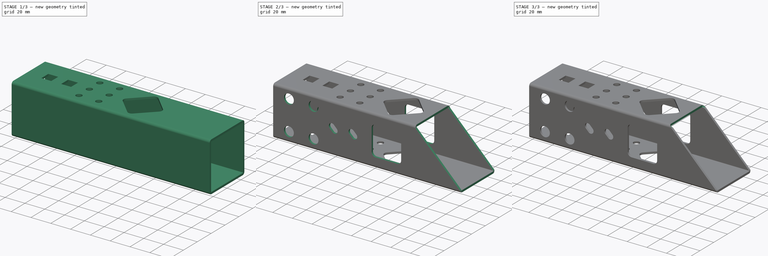
[diagram: build sequence overview — one tinted view per stage of 3, left to right]
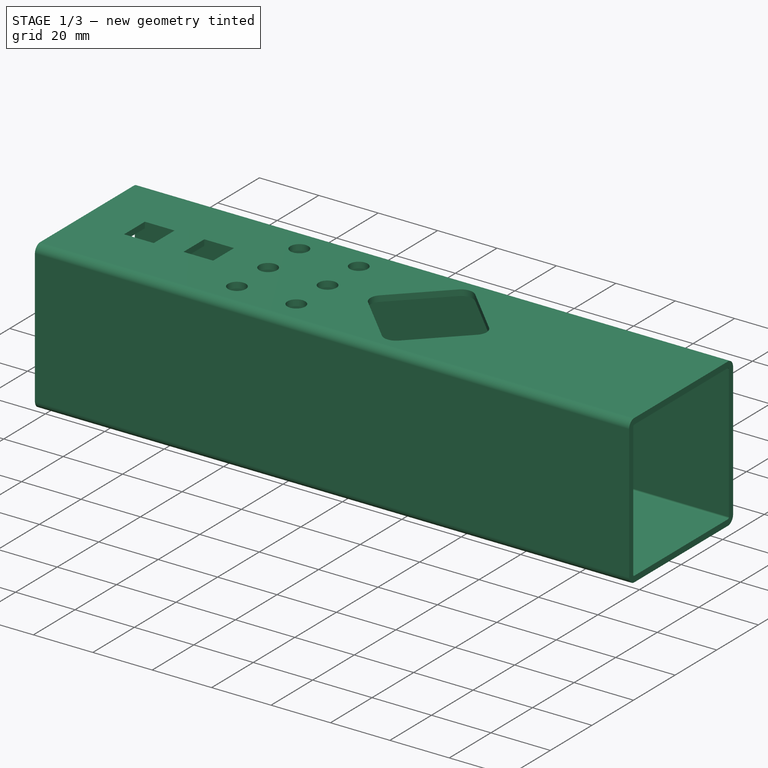
[diagram: stage 1 of 3 — iso view after this stage's code; geometry added in this stage tinted green]
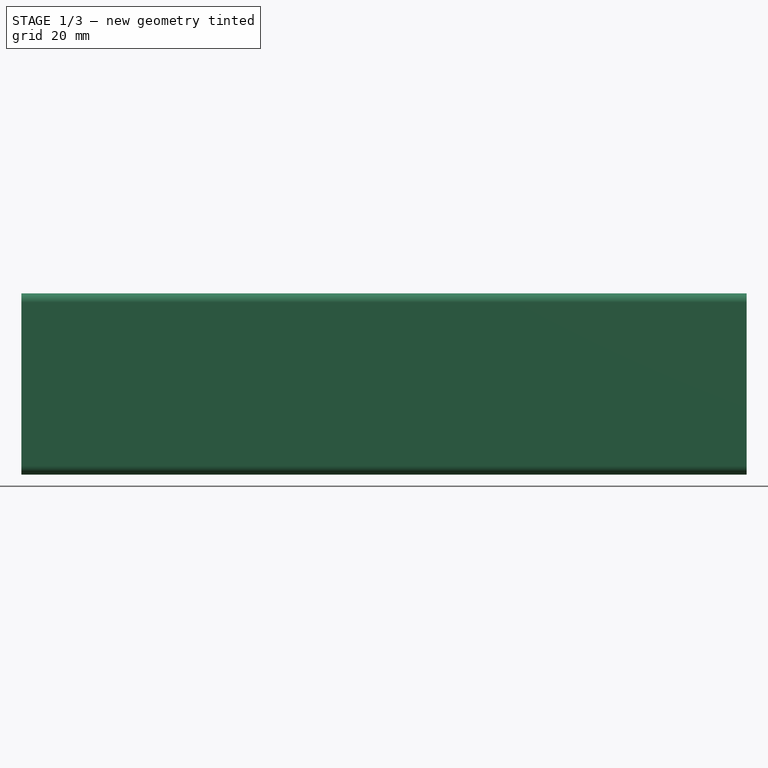
[diagram: stage 1 of 3 — front view after this stage's code; geometry added in this stage tinted green]
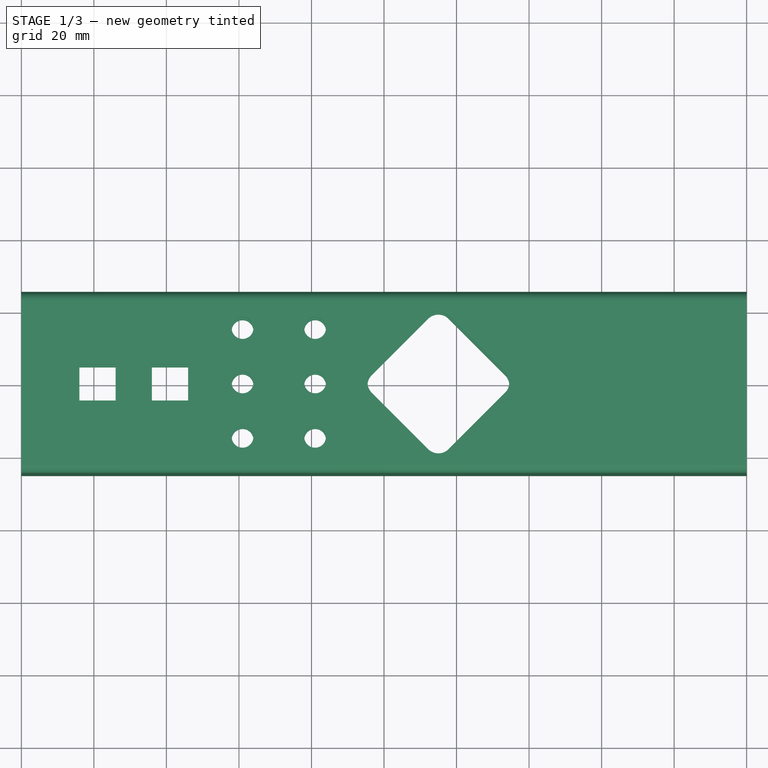
[diagram: stage 1 of 3 — top view after this stage's code; geometry added in this stage tinted green]
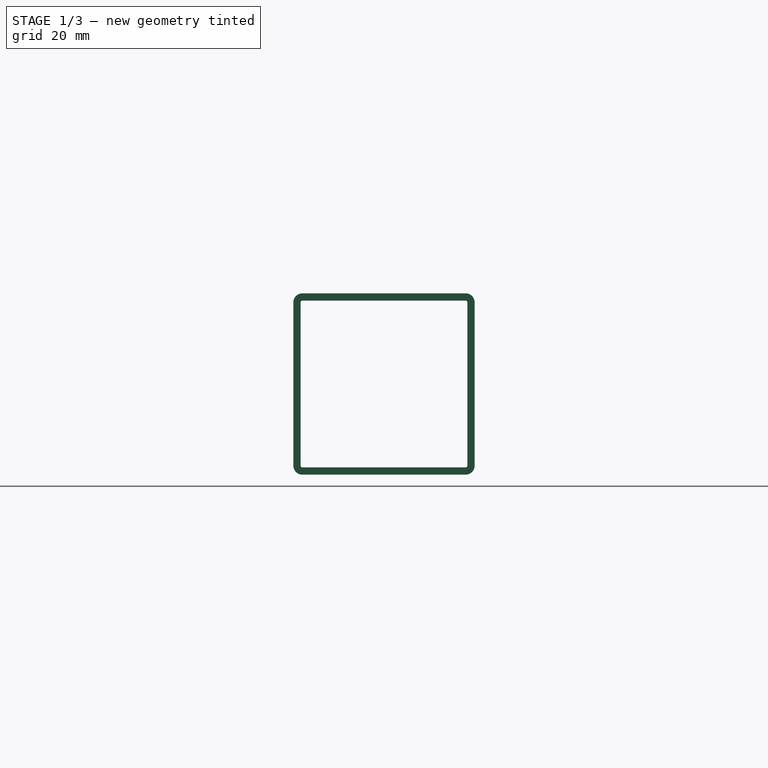
[diagram: stage 1 of 3 — right view after this stage's code; geometry added in this stage tinted green]
FCSTD DOCUMENT  (FreeCAD 0.20R26075 +2 (Git))
Label: tube_normalcut
License: All rights reserved
LicenseURL: http://en.wikipedia.org/wiki/All_rights_reserved
objects: Sketcher::SketchObject×4, PartDesign::Pocket×3, Part::FeaturePython×2, Part::Offset×2, PartDesign::Pad×1, PartDesign::Body×1, Part::MultiCommon×1, Part::Feature×1
note: 19 computed .brp shape members not serialized (recipe doc carries the construction recipe); baked Part::Feature solids carry a one-line shape summary decoded from their .brp

FEATURE [Sketcher::SketchObject] Sketch
  FullyConstrained = false
  Placement = pos=(0,0,25) rot=(0,0,1;0rad)
  sketch-geometry (24):
    g0: LineSegment StartX=26 StartY=-5 StartZ=0 EndX=26 EndY=5 EndZ=0
    g1: LineSegment StartX=26 StartY=5 StartZ=0 EndX=16 EndY=5 EndZ=0
    g2: LineSegment StartX=16 StartY=5 StartZ=0 EndX=16 EndY=-5 EndZ=0
    g3: LineSegment StartX=16 StartY=-5 StartZ=0 EndX=26 EndY=-5 EndZ=0
    g4: LineSegment StartX=46 StartY=-5 StartZ=0 EndX=46 EndY=5 EndZ=0
    g5: LineSegment StartX=46 StartY=5 StartZ=0 EndX=36 EndY=5 EndZ=0
    g6: LineSegment StartX=36 StartY=5 StartZ=0 EndX=36 EndY=-5 EndZ=0
    g7: LineSegment StartX=36 StartY=-5 StartZ=0 EndX=46 EndY=-5 EndZ=0
    g8: Circle CenterX=60.9981 CenterY=-15 CenterZ=0 NormalX=0 NormalY=0 NormalZ=-1 AngleXU=0 Radius=3
    g9: Circle CenterX=60.9981 CenterY=-2e-16 CenterZ=0 NormalX=0 NormalY=0 NormalZ=-1 AngleXU=0 Radius=3
    g10: Circle CenterX=60.9981 CenterY=15 CenterZ=0 NormalX=0 NormalY=0 NormalZ=-1 AngleXU=0 Radius=3
    g11: Circle CenterX=81.0019 CenterY=15 CenterZ=0 NormalX=0 NormalY=0 NormalZ=1 AngleXU=0 Radius=3
    g12: Circle CenterX=81.0019 CenterY=-4e-16 CenterZ=0 NormalX=0 NormalY=0 NormalZ=1 AngleXU=0 Radius=3
    g13: Circle CenterX=81.0019 CenterY=-15 CenterZ=0 NormalX=0 NormalY=0 NormalZ=1 AngleXU=0 Radius=3
    g14: ArcOfCircle CenterX=115 CenterY=15.5563 CenterZ=0 NormalX=0 NormalY=0 NormalZ=1 AngleXU=0 Radius=4 StartAngle=0.785398 EndAngle=2.35619
    g15: LineSegment StartX=117.828 StartY=18.3848 StartZ=0 EndX=133.385 EndY=2.82843 EndZ=0
    g16: ArcOfCircle CenterX=130.556 CenterY=0 CenterZ=0 NormalX=0 NormalY=0 NormalZ=1 AngleXU=0 Radius=4 StartAngle=5.49779 EndAngle=7.06858
    g17: LineSegment StartX=133.385 StartY=-2.82843 StartZ=0 EndX=117.828 EndY=-18.3848 EndZ=0
    g18: ArcOfCircle CenterX=115 CenterY=-15.5563 CenterZ=0 NormalX=0 NormalY=0 NormalZ=1 AngleXU=0 Radius=4 StartAngle=3.92699 EndAngle=5.49779
    g19: LineSegment StartX=112.172 StartY=-18.3848 StartZ=0 EndX=96.6152 EndY=-2.82843 EndZ=0
    g20: ArcOfCircle CenterX=99.4437 CenterY=0 CenterZ=0 NormalX=0 NormalY=0 NormalZ=1 AngleXU=0 Radius=4 StartAngle=2.35619 EndAngle=3.92699
    g21: LineSegment StartX=96.6152 StartY=2.82843 StartZ=0 EndX=112.172 EndY=18.3848 EndZ=0
    g22: GeomPoint X=115 Y=21.2132 Z=0
    g23: GeomPoint X=115 Y=-21.2132 Z=0
  constraints (24):
    c: Tangent(g14,g15) = 1.5708
    c: Tangent(g15,g16) = 1.5708
    c: Tangent(g16,g17) = 1.5708
    c: Tangent(g17,g18) = 1.5708
    c: Tangent(g18,g19) = 1.5708
    c: Tangent(g19,g20) = 1.5708
    c: Tangent(g20,g21) = 1.5708
    c: Tangent(g21,g14) = 1.5708
    c: Parallel(g15,g19)
    c: Parallel(g17,g21)
    c: Equal(g14,g16)
    c: Equal(g16,g18)
    c: Equal(g18,g20)
    c: PointOnObject(g22,g15)
    c: PointOnObject(g22,g21)
    c: PointOnObject(g23,g17)
    c: PointOnObject(g23,g19)
    c: Perpendicular(g17,g15)
    c: PointOnObject(g16,g-1)
    c: PointOnObject(g20,g-1)
    c: Vertical(g18,g14)
    c: Diameter(g20) = 8
    c: Distance(g21) = 22
    c: DistanceX(g-1,g18) = 115
FEATURE [Sketcher::SketchObject] Sketch001
  FullyConstrained = true
  MapMode = 5
  Placement = pos=(0,0,0) rot=(0.57735,0.57735,0.57735;2.0944rad)
  Support = -> [YZ_Plane]
  sketch-geometry (20):
    g0: ArcOfCircle CenterX=-22.5 CenterY=22.5 CenterZ=0 NormalX=0 NormalY=0 NormalZ=1 AngleXU=0 Radius=2.5 StartAngle=1.5708 EndAngle=3.14159
    g1: LineSegment StartX=-22.5 StartY=25 StartZ=0 EndX=22.5 EndY=25 EndZ=0
    g2: ArcOfCircle CenterX=22.5 CenterY=22.5 CenterZ=0 NormalX=0 NormalY=0 NormalZ=1 AngleXU=0 Radius=2.5 StartAngle=-6.91e-13 EndAngle=1.5708
    g3: LineSegment StartX=25 StartY=22.5 StartZ=0 EndX=25 EndY=-22.5 EndZ=0
    g4: ArcOfCircle CenterX=22.5 CenterY=-22.5 CenterZ=0 NormalX=0 NormalY=0 NormalZ=1 AngleXU=0 Radius=2.5 StartAngle=4.71239 EndAngle=6.28319
    g5: LineSegment StartX=22.5 StartY=-25 StartZ=0 EndX=-22.5 EndY=-25 EndZ=0
    g6: ArcOfCircle CenterX=-22.5 CenterY=-22.5 CenterZ=0 NormalX=0 NormalY=0 NormalZ=1 AngleXU=0 Radius=2.5 StartAngle=3.14159 EndAngle=4.71239
    g7: LineSegment StartX=-25 StartY=-22.5 StartZ=0 EndX=-25 EndY=22.5 EndZ=0
    g8: GeomPoint X=-25 Y=25 Z=0
    g9: GeomPoint X=25 Y=-25 Z=0
    g10: ArcOfCircle CenterX=-22.5 CenterY=22.5 CenterZ=0 NormalX=0 NormalY=0 NormalZ=1 AngleXU=0 Radius=0.5 StartAngle=1.5708 EndAngle=3.14159
    g11: LineSegment StartX=-22.5 StartY=23 StartZ=0 EndX=22.5 EndY=23 EndZ=0
    g12: ArcOfCircle CenterX=22.5 CenterY=22.5 CenterZ=0 NormalX=0 NormalY=0 NormalZ=1 AngleXU=0 Radius=0.5 StartAngle=3.19008e-11 EndAngle=1.5708
    g13: LineSegment StartX=23 StartY=22.5 StartZ=0 EndX=23 EndY=-22.5 EndZ=0
    g14: ArcOfCircle CenterX=22.5 CenterY=-22.5 CenterZ=0 NormalX=0 NormalY=0 NormalZ=1 AngleXU=0 Radius=0.5 StartAngle=4.71239 EndAngle=6.28319
    g15: LineSegment StartX=22.5 StartY=-23 StartZ=0 EndX=-22.5 EndY=-23 EndZ=0
    g16: ArcOfCircle CenterX=-22.5 CenterY=-22.5 CenterZ=0 NormalX=0 NormalY=0 NormalZ=1 AngleXU=0 Radius=0.5 StartAngle=3.14159 EndAngle=4.71239
    g17: LineSegment StartX=-23 StartY=-22.5 StartZ=0 EndX=-23 EndY=22.5 EndZ=0
    g18: GeomPoint X=-23 Y=23 Z=0
    g19: GeomPoint X=23 Y=-23 Z=0
  constraints (45):
    c: Tangent(g0,g1) = 1.5708
    c: Tangent(g1,g2) = 1.5708
    c: Tangent(g2,g3) = 1.5708
    c: Tangent(g3,g4) = 1.5708
    c: Tangent(g4,g5) = 1.5708
    c: Tangent(g5,g6) = 1.5708
    c: Tangent(g6,g7) = 1.5708
    c: Tangent(g7,g0) = 1.5708
    c: Horizontal(g1)
    c: Horizontal(g5)
    c: Vertical(g3)
    c: Vertical(g7)
    c: Equal(g0,g2)
    c: Equal(g2,g4)
    c: Equal(g4,g6)
    c: PointOnObject(g8,g1)
    c: PointOnObject(g8,g7)
    c: PointOnObject(g9,g3)
    c: PointOnObject(g9,g5)
    c: DistanceX(g0,g2) = 50
    c: Equal(g1,g3)
    c: Symmetric(g0,g4,g-1)
    c: Tangent(g10,g11) = 1.5708
    c: Tangent(g11,g12) = 1.5708
    c: Tangent(g12,g13) = 1.5708
    c: Tangent(g13,g14) = 1.5708
    c: Tangent(g14,g15) = 1.5708
    c: Tangent(g15,g16) = 1.5708
    c: Tangent(g16,g17) = 1.5708
    c: Tangent(g17,g10) = 1.5708
    c: Horizontal(g11)
    c: Horizontal(g15)
    c: Vertical(g13)
    c: Vertical(g17)
    c: Equal(g14,g16)
    c: PointOnObject(g18,g11)
    c: PointOnObject(g18,g17)
    c: PointOnObject(g19,g13)
    c: PointOnObject(g19,g15)
    c: Symmetric(g10,g14,g-1)
    c: DistanceY(g11,g1) = 2
    c: Equal(g11,g13)
    c: Equal(g12,g10)
    c: Radius(g2) = 2.5
    c: Coincident(g12,g2)
FEATURE [PartDesign::Pad] Pad
  Direction = (1,-2e-16,3e-16)
  Length = 200
  Length2 = 100
  Placement = pos=(0,0,0) rot=(0.57735,0.57735,0.57735;2.0944rad)
  Profile = -> Sketch001
  Type = 0
FEATURE [Sketcher::SketchObject] Sketch002
  AttachmentOffset = pos=(0,0,0) rot=(0,0,1;1.5708rad)
  FullyConstrained = false
  MapMode = 5
  Placement = pos=(-1.1e-14,-25,1.7e-14) rot=(1,0,0;1.5708rad)
  sketch-geometry (28):
    g0: Circle CenterX=41 CenterY=-15 CenterZ=0 NormalX=0 NormalY=0 NormalZ=1 AngleXU=0 Radius=4.99925
    g1: Circle CenterX=16 CenterY=-15 CenterZ=0 NormalX=0 NormalY=0 NormalZ=1 AngleXU=0 Radius=5
    g2: Circle CenterX=16 CenterY=15 CenterZ=0 NormalX=0 NormalY=0 NormalZ=1 AngleXU=0 Radius=5
    g3: Circle CenterX=41 CenterY=15 CenterZ=0 NormalX=0 NormalY=0 NormalZ=1 AngleXU=0 Radius=4.99925
    g4: LineSegment StartX=58.88 StartY=-2.12 StartZ=0 EndX=60.29 EndY=-3.54 EndZ=0
    g5: ArcOfCircle CenterX=62.415 CenterY=-1.415 CenterZ=0 NormalX=0 NormalY=0 NormalZ=1 AngleXU=0 Radius=3.0052 StartAngle=3.92699 EndAngle=7.06858
    g6: LineSegment StartX=64.54 StartY=0.71 StartZ=0 EndX=63.12 EndY=2.12 EndZ=0
    g7: LineSegment StartX=63.12 StartY=2.12 StartZ=0 EndX=61.71 EndY=3.54 EndZ=0
    g8: ArcOfCircle CenterX=59.585 CenterY=1.415 CenterZ=0 NormalX=0 NormalY=0 NormalZ=1 AngleXU=0 Radius=3.0052 StartAngle=0.785398 EndAngle=3.92699
    g9: LineSegment StartX=57.46 StartY=-0.71 StartZ=0 EndX=58.88 EndY=-2.12 EndZ=0
    g10: LineSegment StartX=78.88 StartY=-2.12 StartZ=0 EndX=80.29 EndY=-3.54 EndZ=0
    g11: ArcOfCircle CenterX=82.415 CenterY=-1.415 CenterZ=0 NormalX=0 NormalY=0 NormalZ=1 AngleXU=0 Radius=3.0052 StartAngle=3.92699 EndAngle=7.06858
    g12: LineSegment StartX=84.54 StartY=0.71 StartZ=0 EndX=83.12 EndY=2.12 EndZ=0
    g13: LineSegment StartX=83.12 StartY=2.12 StartZ=0 EndX=81.71 EndY=3.54 EndZ=0
    g14: ArcOfCircle CenterX=79.585 CenterY=1.415 CenterZ=0 NormalX=0 NormalY=0 NormalZ=1 AngleXU=0 Radius=3.0052 StartAngle=0.785398 EndAngle=3.92699
    g15: LineSegment StartX=77.46 StartY=-0.71 StartZ=0 EndX=78.88 EndY=-2.12 EndZ=0
    g16: ArcOfCircle CenterX=104 CenterY=11 CenterZ=0 NormalX=0 NormalY=0 NormalZ=1 AngleXU=0 Radius=4 StartAngle=1.5708 EndAngle=3.14159
    g17: LineSegment StartX=104 StartY=15 StartZ=0 EndX=126 EndY=15 EndZ=0
    g18: ArcOfCircle CenterX=126 CenterY=11 CenterZ=0 NormalX=0 NormalY=0 NormalZ=1 AngleXU=0 Radius=4 StartAngle=0 EndAngle=1.5708
    g19: LineSegment StartX=130 StartY=11 StartZ=0 EndX=130 EndY=-11 EndZ=0
    g20: ArcOfCircle CenterX=126 CenterY=-11 CenterZ=0 NormalX=0 NormalY=0 NormalZ=1 AngleXU=0 Radius=4 StartAngle=4.71239 EndAngle=6.28319
    g21: LineSegment StartX=126 StartY=-15 StartZ=0 EndX=104 EndY=-15 EndZ=0
    g22: ArcOfCircle CenterX=104 CenterY=-11 CenterZ=0 NormalX=0 NormalY=0 NormalZ=1 AngleXU=0 Radius=4 StartAngle=3.14159 EndAngle=4.71239
    g23: LineSegment StartX=100 StartY=-11 StartZ=0 EndX=100 EndY=11 EndZ=0
    g24: GeomPoint X=100 Y=15 Z=0
    g25: GeomPoint X=130 Y=-15 Z=0
    g26: LineSegment StartX=104 StartY=11 StartZ=0 EndX=115 EndY=0 EndZ=0
    g27: LineSegment StartX=115 StartY=0 StartZ=0 EndX=126 EndY=-11 EndZ=0
  constraints (39):
    c: Coincident(g8,g9)
    c: Coincident(g4,g9)
    c: Coincident(g4,g5)
    c: Coincident(g7,g8)
    c: Coincident(g6,g7)
    c: Coincident(g5,g6)
    c: Coincident(g14,g15)
    c: Coincident(g10,g15)
    c: Coincident(g10,g11)
    c: Coincident(g13,g14)
    c: Coincident(g12,g13)
    c: Coincident(g11,g12)
    c: Tangent(g16,g17) = 1.5708
    c: Tangent(g17,g18) = 1.5708
    c: Tangent(g18,g19) = 1.5708
    c: Tangent(g19,g20) = 1.5708
    c: Tangent(g20,g21) = 1.5708
    c: Tangent(g21,g22) = 1.5708
    c: Tangent(g22,g23) = 1.5708
    c: Tangent(g23,g16) = 1.5708
    c: Horizontal(g17)
    c: Horizontal(g21)
    c: Vertical(g19)
    c: Vertical(g23)
    c: Equal(g16,g18)
    c: Equal(g18,g20)
    c: PointOnObject(g24,g17)
    c: PointOnObject(g24,g23)
    c: PointOnObject(g25,g19)
    c: PointOnObject(g25,g21)
    c: DistanceX(g21,g21) = 22
    c: Equal(g19,g21)
    c: Diameter(g18) = 8
    c: Symmetric(g22,g16,g-1)
    c: Tangent(g26,g27) = -1.5708
    c: Coincident(g26,g16)
    c: Coincident(g27,g20)
    c: PointOnObject(g26,g-1)
    c: DistanceX(g-1,g26) = 115
FEATURE [PartDesign::Pocket] Pocket
  BaseFeature = -> Pad
  Length = 5
  Length2 = 100
  Placement = pos=(0,0,0) rot=(0.57735,0.57735,0.57735;2.0944rad)
  Profile = -> Sketch
  Type = 1
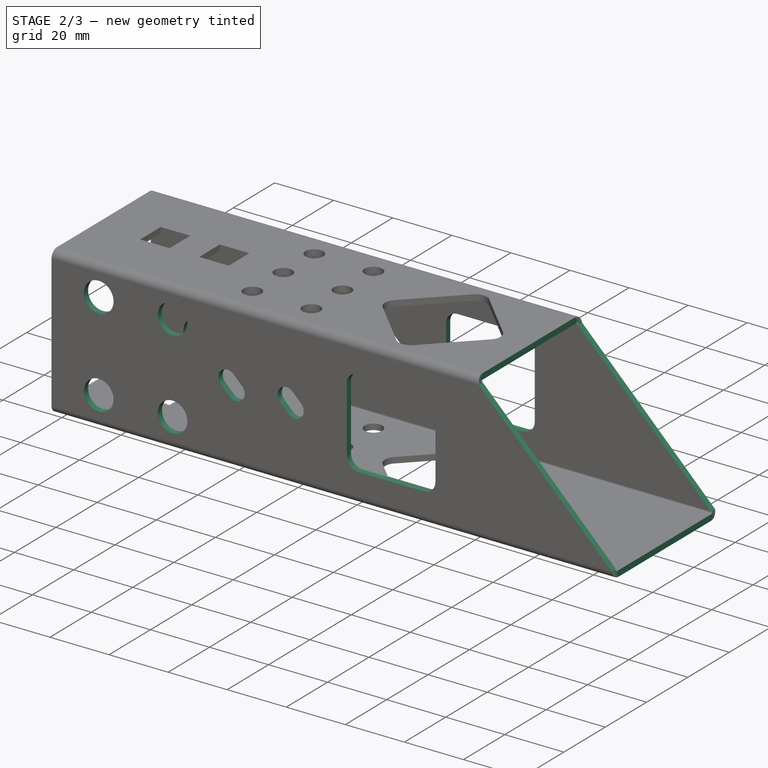
[diagram: stage 2 of 3 — iso view after this stage's code; geometry added in this stage tinted green]
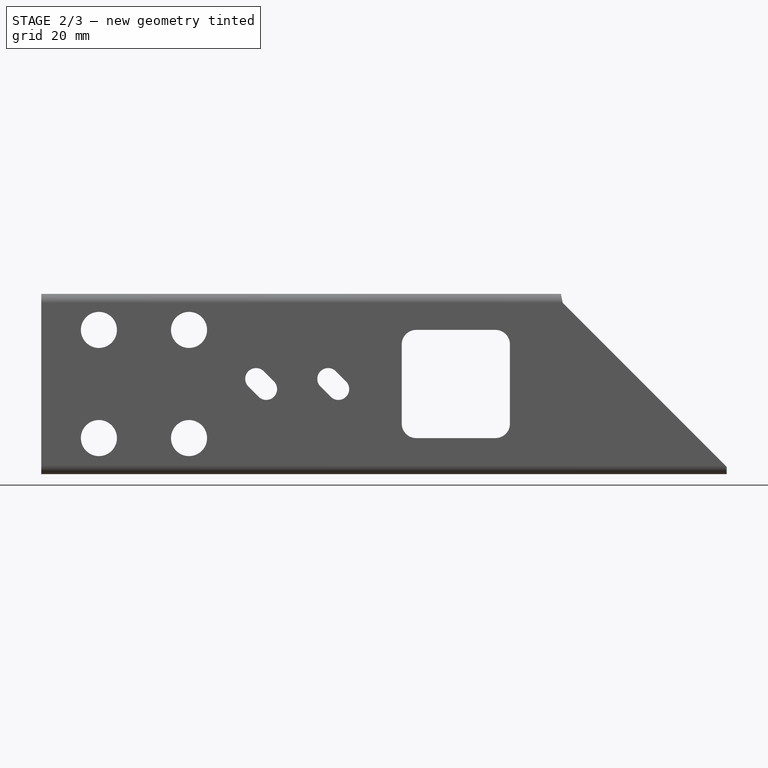
[diagram: stage 2 of 3 — front view after this stage's code; geometry added in this stage tinted green]
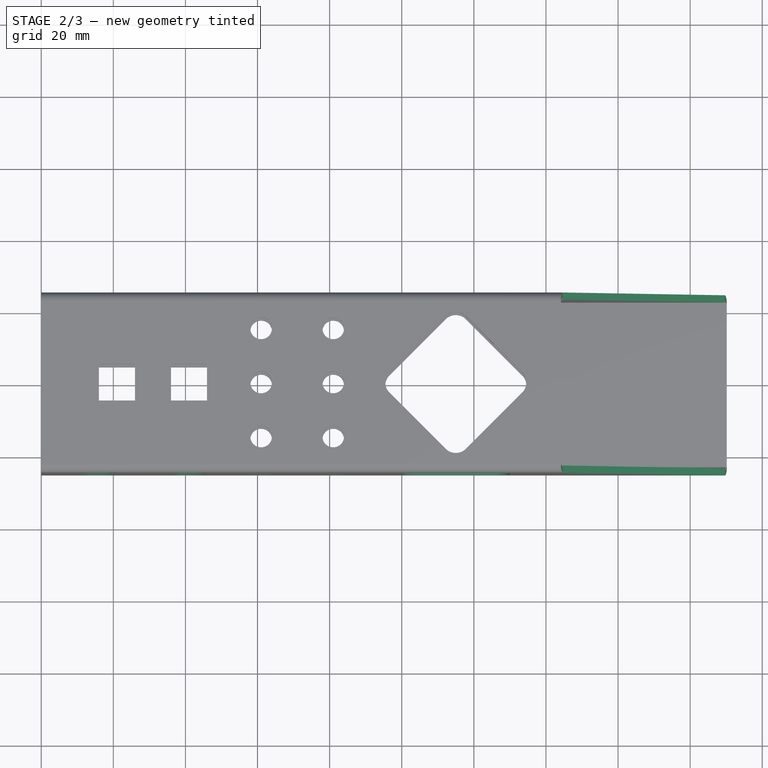
[diagram: stage 2 of 3 — top view after this stage's code; geometry added in this stage tinted green]
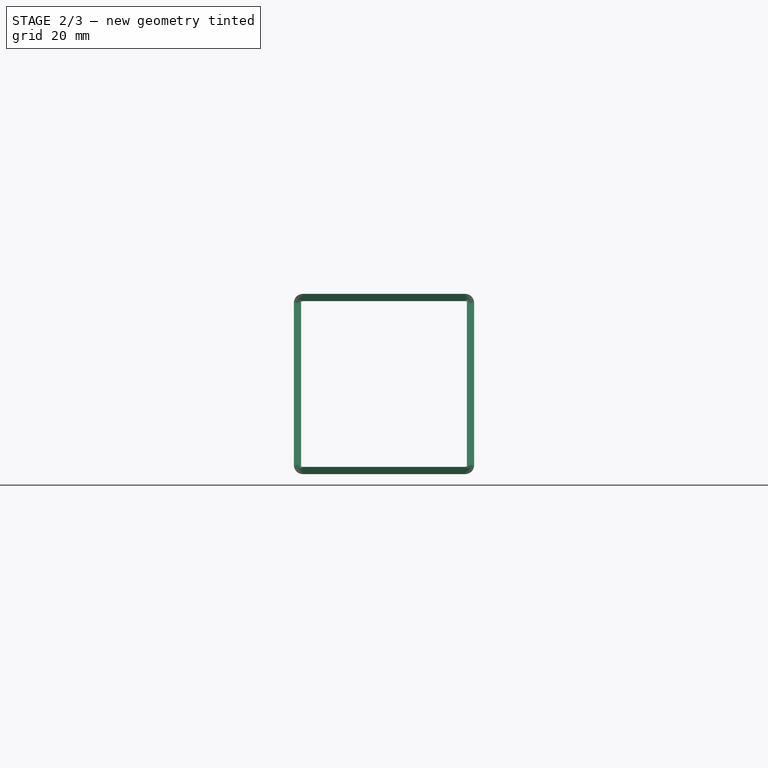
[diagram: stage 2 of 3 — right view after this stage's code; geometry added in this stage tinted green]
FEATURE [PartDesign::Pocket] Pocket001
  BaseFeature = -> Pocket
  Length = 5
  Length2 = 100
  Placement = pos=(0,0,0) rot=(0.57735,0.57735,0.57735;2.0944rad)
  Profile = -> Sketch002
  Type = 1
FEATURE [Sketcher::SketchObject] Sketch003
  FullyConstrained = false
  MapMode = 5
  Placement = pos=(-1.1e-14,-25,5.5e-15) rot=(-0.57735,-0.57735,0.57735;4.18879rad)
  Support = -> [Pocket001]
  sketch-geometry (3):
    g0: LineSegment StartX=-28.5962 StartY=138.558 StartZ=0 EndX=36.3375 EndY=203.491 EndZ=0
    g1: LineSegment StartX=36.3375 StartY=203.491 StartZ=0 EndX=-28.5962 EndY=203.491 EndZ=0
    g2: LineSegment StartX=-28.5962 StartY=203.491 StartZ=0 EndX=-28.5962 EndY=138.558 EndZ=0
  constraints (6):
    c: Coincident(g1,g0)
    c: Horizontal(g1)
    c: Coincident(g2,g1)
    c: Coincident(g2,g0)
    c: Vertical(g2)
    c: Angle(g0) = 0.785398
FEATURE [PartDesign::Pocket] Pocket002  label="Pocket004"
  BaseFeature = -> Pocket001
  Length = 5
  Length2 = 100
  Placement = pos=(0,0,0) rot=(0.57735,0.57735,0.57735;2.0944rad)
  Profile = -> Sketch003
  Type = 1
FEATURE [Part::Offset] Offset001
  Fill = true
  Intersection = false
  Join = 0
  Mode = 0
  SelfIntersection = false
  Source = -> Facebinder001
  Value = -2
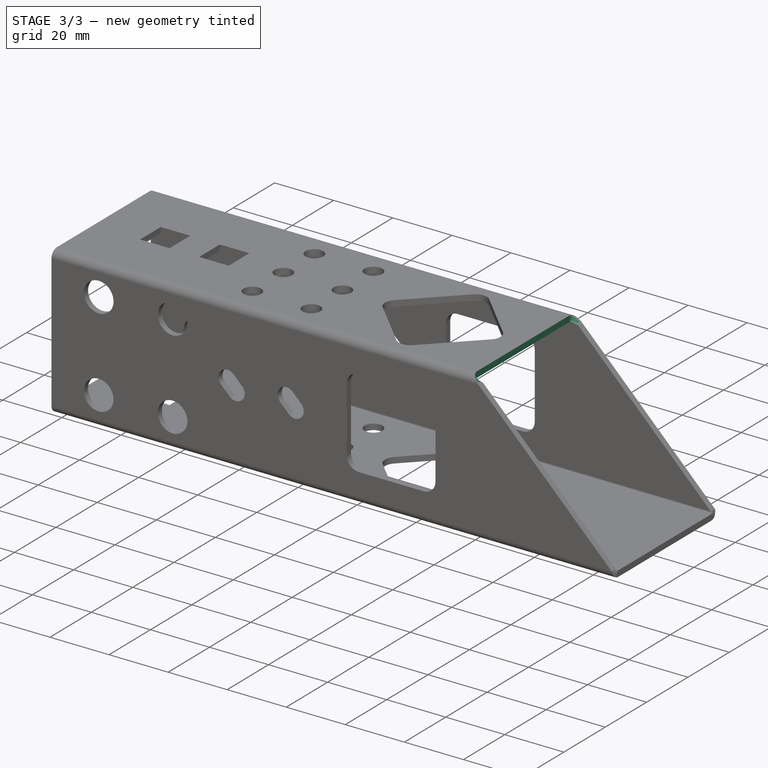
[diagram: stage 3 of 3 — iso view after this stage's code; geometry added in this stage tinted green]
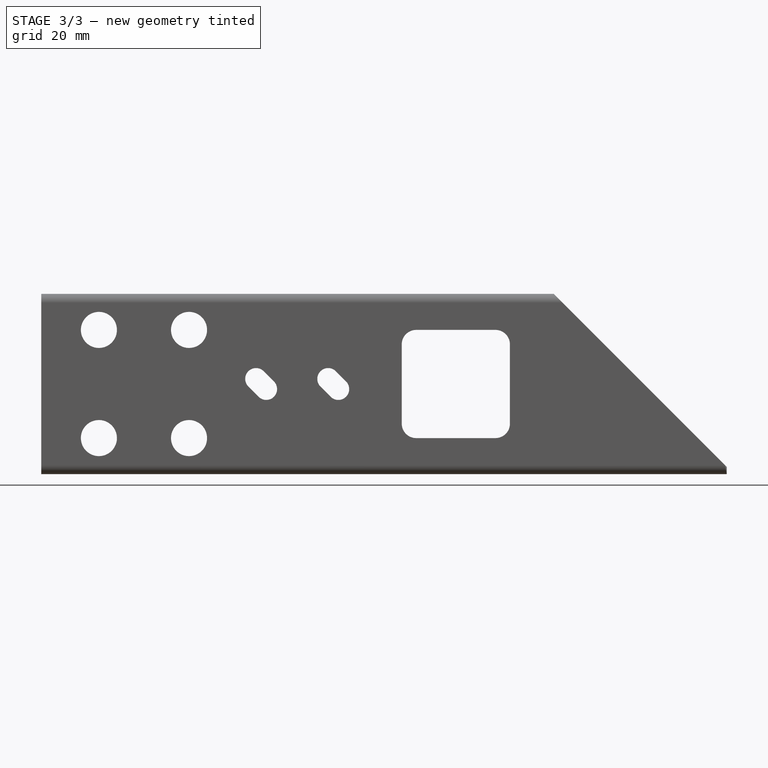
[diagram: stage 3 of 3 — front view after this stage's code; geometry added in this stage tinted green]
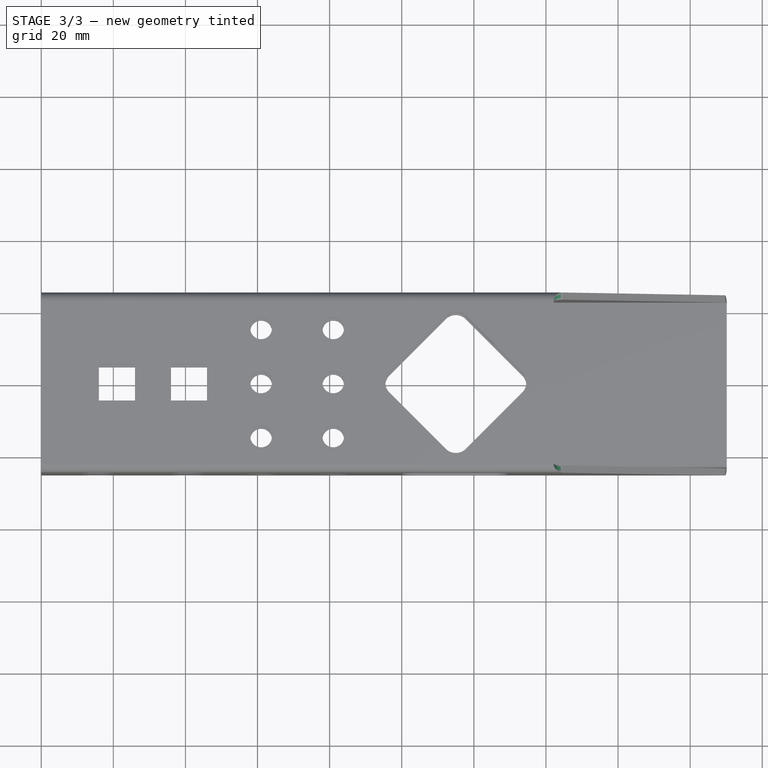
[diagram: stage 3 of 3 — top view after this stage's code; geometry added in this stage tinted green]
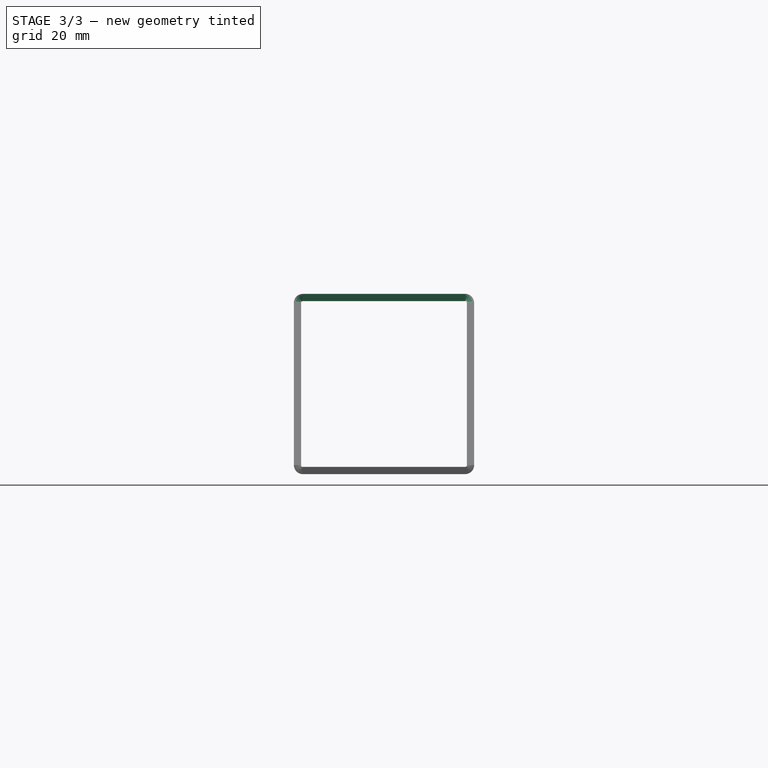
[diagram: stage 3 of 3 — right view after this stage's code; geometry added in this stage tinted green]
FEATURE [PartDesign::Body] Body
  Group = -> [Sketch001,Pad,Sketch,Sketch002,Pocket,Pocket001,Sketch003,Pocket002]
  Origin = -> Origin
  Tip = -> Pocket002
FEATURE [Part::FeaturePython] Facebinder  # WARN: FeaturePython — macro-defined, semantics opaque (R4)
  Area = 27591.2
  Extrusion = 0
  Faces = -> [Pocket002]
  RemoveSplitter = false
  Sew = false
FEATURE [Part::FeaturePython] Facebinder001  # WARN: FeaturePython — macro-defined, semantics opaque (R4)
  Area = 25490.6
  Extrusion = 0
  Faces = -> [Pocket002]
  RemoveSplitter = false
  Sew = false
FEATURE [Part::Offset] Offset
  Fill = true
  Intersection = false
  Join = 0
  Mode = 0
  SelfIntersection = false
  Source = -> Facebinder
  Value = -2
FEATURE [Part::MultiCommon] Common
  Shapes = -> [Offset,Offset001]
FEATURE [Part::Feature] Normals
  shape: bbox 190.2 x 60 x 60 mm, 0 faces, 0 solids (baked)
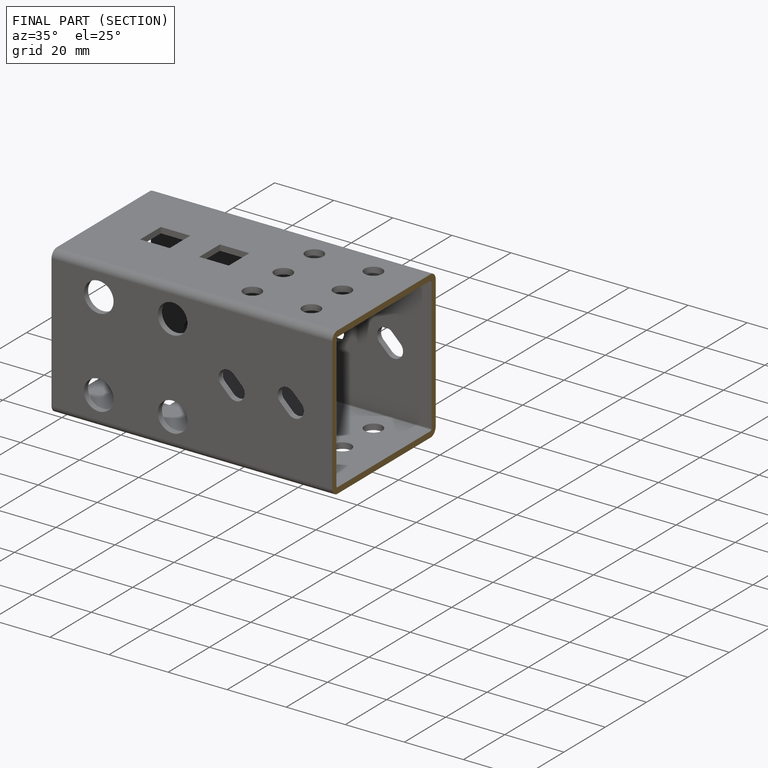
[diagram: finished part — half-section view (interior)]
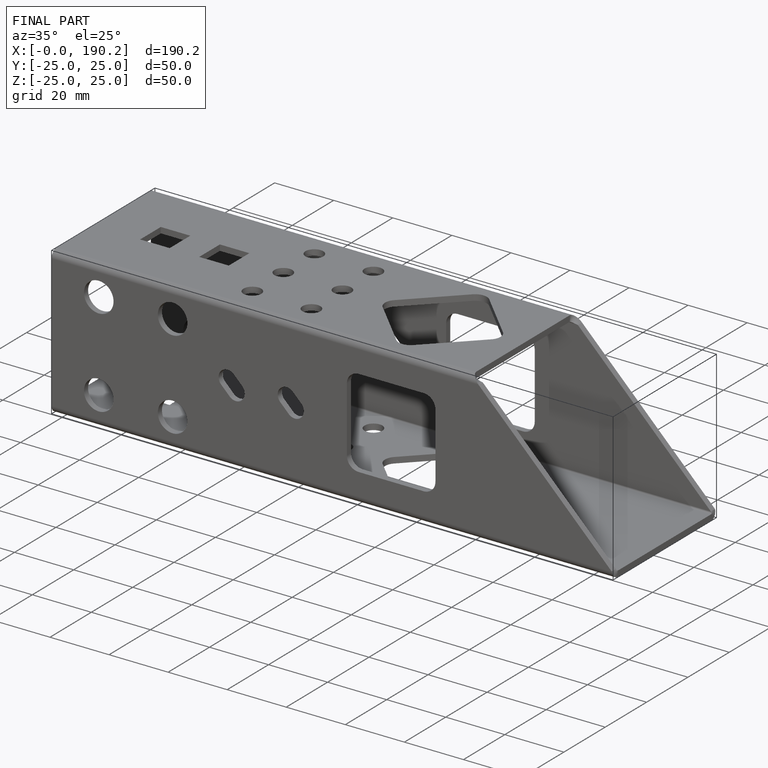
[diagram: finished part — iso view with bounding-box wireframe]
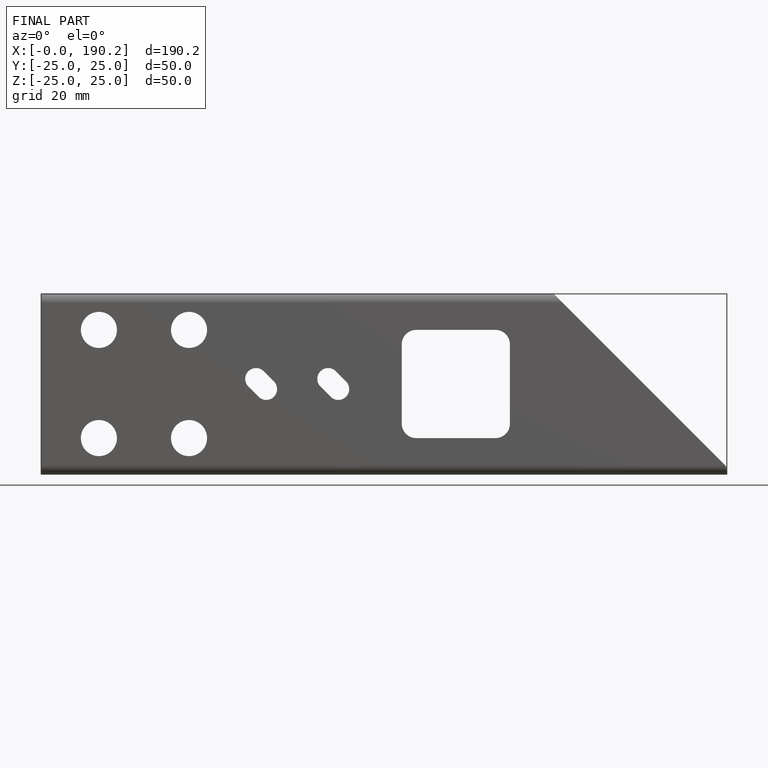
[diagram: finished part — front view with bounding-box wireframe]
